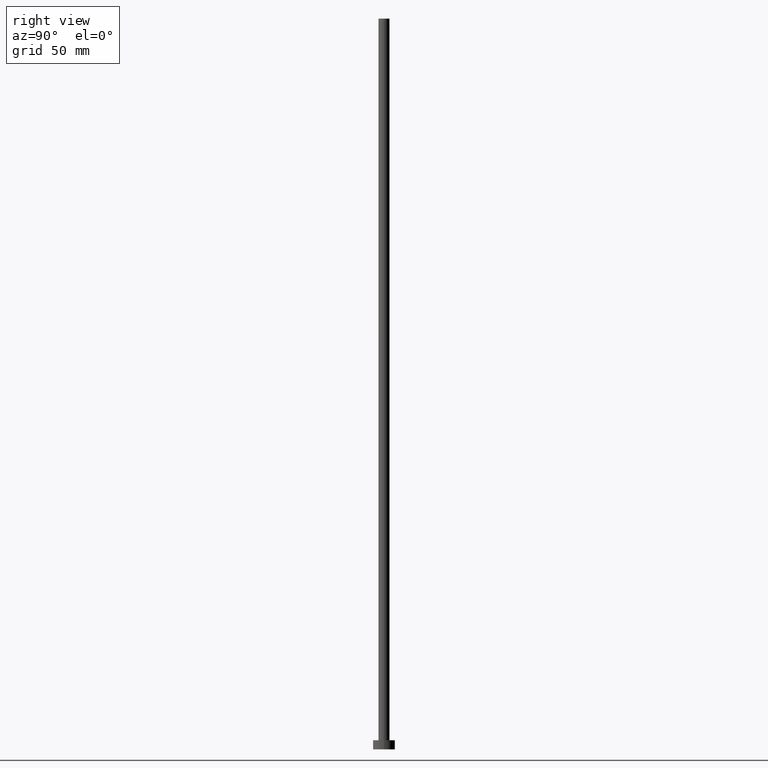
[diagram: clean part render]
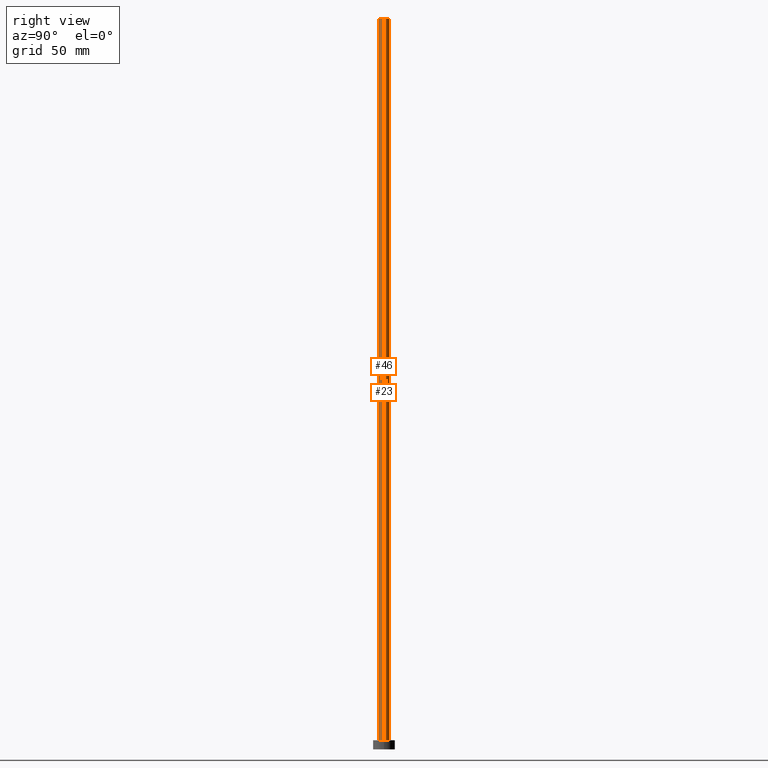
[diagram: same view with one multi-face feature highlighted, each face labeled with its STEP entity id]
A machine part, right view. The highlighted faces form ONE feature: a constant-radius fillet chain: 2 tangent blend faces with common blend radius 3 mm. The faces share edges in the B-rep.
Their STEP definitions:
[1] entity #23 (Cylinder):
#7 = DIRECTION ( 'NONE',  ( -1.000000000000000000, 0.000000000000000000, 0.000000000000000000 ) ) ;
#17 = EDGE_CURVE ( 'NONE', #237, #181, #83, .T. ) ;
#19 = DIRECTION ( 'NONE',  ( -0.000000000000000000, -0.000000000000000000, -1.000000000000000000 ) ) ;
#20 = VERTEX_POINT ( 'NONE', #64 ) ;
#22 = VECTOR ( 'NONE', #19, 1000.000000000000000 ) ;
#23 = ADVANCED_FACE ( 'NONE', ( #100 ), #178, .T. ) ;
#29 = CARTESIAN_POINT ( 'NONE',  ( -3.000000000000000444, 0.000000000000000000, 400.0000000000000000 ) ) ;
#30 = EDGE_CURVE ( 'NONE', #66, #181, #84, .T. ) ;
#33 = DIRECTION ( 'NONE',  ( 0.000000000000000000, 0.000000000000000000, 1.000000000000000000 ) ) ;
#44 = CARTESIAN_POINT ( 'NONE',  ( 0.000000000000000000, 0.000000000000000000, 400.0000000000000000 ) ) ;
#49 = CARTESIAN_POINT ( 'NONE',  ( -3.000000000000000444, 0.000000000000000000, 5.000000000000000000 ) ) ;
#57 = EDGE_CURVE ( 'NONE', #20, #66, #115, .T. ) ;
#64 = CARTESIAN_POINT ( 'NONE',  ( 3.000000000000000444, 3.673940397442059868E-16, 400.0000000000000000 ) ) ;
#66 = VERTEX_POINT ( 'NONE', #175 ) ;
#71 = DIRECTION ( 'NONE',  ( 1.000000000000000000, 0.000000000000000000, 0.000000000000000000 ) ) ;
#73 = CIRCLE ( 'NONE', #191, 3.000000000000000444 ) ;
#83 = LINE ( 'NONE', #144, #127 ) ;
#84 = CIRCLE ( 'NONE', #179, 3.000000000000000444 ) ;
#88 = DIRECTION ( 'NONE',  ( 1.000000000000000000, 0.000000000000000000, 0.000000000000000000 ) ) ;
#100 = FACE_OUTER_BOUND ( 'NONE', #106, .T. ) ;
#106 = EDGE_LOOP ( 'NONE', ( #136, #203, #119, #210 ) ) ;
#112 = CARTESIAN_POINT ( 'NONE',  ( 3.000000000000000444, 3.673940397442059868E-16, 400.0000000000000000 ) ) ;
#115 = LINE ( 'NONE', #112, #22 ) ;
#119 = ORIENTED_EDGE ( 'NONE', *, *, #30, .T. ) ;
#122 = EDGE_CURVE ( 'NONE', #20, #237, #73, .T. ) ;
#123 = DIRECTION ( 'NONE',  ( -0.000000000000000000, -0.000000000000000000, -1.000000000000000000 ) ) ;
#127 = VECTOR ( 'NONE', #240, 1000.000000000000000 ) ;
#136 = ORIENTED_EDGE ( 'NONE', *, *, #122, .F. ) ;
#144 = CARTESIAN_POINT ( 'NONE',  ( -3.000000000000000444, 0.000000000000000000, 400.0000000000000000 ) ) ;
#146 = CARTESIAN_POINT ( 'NONE',  ( 0.000000000000000000, 0.000000000000000000, 5.000000000000000000 ) ) ;
#175 = CARTESIAN_POINT ( 'NONE',  ( 3.000000000000000444, 3.673940397442059868E-16, 5.000000000000000000 ) ) ;
#176 = DIRECTION ( 'NONE',  ( 0.000000000000000000, 0.000000000000000000, 1.000000000000000000 ) ) ;
#178 = CYLINDRICAL_SURFACE ( 'NONE', #202, 3.000000000000000444 ) ;
#179 = AXIS2_PLACEMENT_3D ( 'NONE', #146, #33, #71 ) ;
#181 = VERTEX_POINT ( 'NONE', #49 ) ;
#191 = AXIS2_PLACEMENT_3D ( 'NONE', #232, #176, #88 ) ;
#202 = AXIS2_PLACEMENT_3D ( 'NONE', #44, #123, #7 ) ;
#203 = ORIENTED_EDGE ( 'NONE', *, *, #57, .T. ) ;
#210 = ORIENTED_EDGE ( 'NONE', *, *, #17, .F. ) ;
#232 = CARTESIAN_POINT ( 'NONE',  ( 0.000000000000000000, 0.000000000000000000, 400.0000000000000000 ) ) ;
#237 = VERTEX_POINT ( 'NONE', #29 ) ;
#240 = DIRECTION ( 'NONE',  ( -0.000000000000000000, -0.000000000000000000, -1.000000000000000000 ) ) ;
[2] entity #46 (Cylinder):
#17 = EDGE_CURVE ( 'NONE', #237, #181, #83, .T. ) ;
#19 = DIRECTION ( 'NONE',  ( -0.000000000000000000, -0.000000000000000000, -1.000000000000000000 ) ) ;
#20 = VERTEX_POINT ( 'NONE', #64 ) ;
#22 = VECTOR ( 'NONE', #19, 1000.000000000000000 ) ;
#24 = CARTESIAN_POINT ( 'NONE',  ( 0.000000000000000000, 0.000000000000000000, 400.0000000000000000 ) ) ;
#26 = DIRECTION ( 'NONE',  ( 0.000000000000000000, 0.000000000000000000, 1.000000000000000000 ) ) ;
#28 = ORIENTED_EDGE ( 'NONE', *, *, #17, .T. ) ;
#29 = CARTESIAN_POINT ( 'NONE',  ( -3.000000000000000444, 0.000000000000000000, 400.0000000000000000 ) ) ;
#39 = CARTESIAN_POINT ( 'NONE',  ( 0.000000000000000000, 0.000000000000000000, 400.0000000000000000 ) ) ;
#46 = ADVANCED_FACE ( 'NONE', ( #56 ), #120, .T. ) ;
#49 = CARTESIAN_POINT ( 'NONE',  ( -3.000000000000000444, 0.000000000000000000, 5.000000000000000000 ) ) ;
#50 = CIRCLE ( 'NONE', #97, 3.000000000000000444 ) ;
#53 = EDGE_CURVE ( 'NONE', #237, #20, #50, .T. ) ;
#55 = AXIS2_PLACEMENT_3D ( 'NONE', #39, #236, #239 ) ;
#56 = FACE_OUTER_BOUND ( 'NONE', #59, .T. ) ;
#57 = EDGE_CURVE ( 'NONE', #20, #66, #115, .T. ) ;
#59 = EDGE_LOOP ( 'NONE', ( #187, #164, #28, #235 ) ) ;
#64 = CARTESIAN_POINT ( 'NONE',  ( 3.000000000000000444, 3.673940397442059868E-16, 400.0000000000000000 ) ) ;
#66 = VERTEX_POINT ( 'NONE', #175 ) ;
#81 = DIRECTION ( 'NONE',  ( 1.000000000000000000, 0.000000000000000000, 0.000000000000000000 ) ) ;
#83 = LINE ( 'NONE', #144, #127 ) ;
#97 = AXIS2_PLACEMENT_3D ( 'NONE', #24, #102, #182 ) ;
#102 = DIRECTION ( 'NONE',  ( 0.000000000000000000, 0.000000000000000000, 1.000000000000000000 ) ) ;
#112 = CARTESIAN_POINT ( 'NONE',  ( 3.000000000000000444, 3.673940397442059868E-16, 400.0000000000000000 ) ) ;
#114 = AXIS2_PLACEMENT_3D ( 'NONE', #121, #26, #81 ) ;
#115 = LINE ( 'NONE', #112, #22 ) ;
#120 = CYLINDRICAL_SURFACE ( 'NONE', #55, 3.000000000000000444 ) ;
#121 = CARTESIAN_POINT ( 'NONE',  ( 0.000000000000000000, 0.000000000000000000, 5.000000000000000000 ) ) ;
#127 = VECTOR ( 'NONE', #240, 1000.000000000000000 ) ;
#144 = CARTESIAN_POINT ( 'NONE',  ( -3.000000000000000444, 0.000000000000000000, 400.0000000000000000 ) ) ;
#164 = ORIENTED_EDGE ( 'NONE', *, *, #53, .F. ) ;
#167 = CIRCLE ( 'NONE', #114, 3.000000000000000444 ) ;
#175 = CARTESIAN_POINT ( 'NONE',  ( 3.000000000000000444, 3.673940397442059868E-16, 5.000000000000000000 ) ) ;
#181 = VERTEX_POINT ( 'NONE', #49 ) ;
#182 = DIRECTION ( 'NONE',  ( 1.000000000000000000, 0.000000000000000000, 0.000000000000000000 ) ) ;
#187 = ORIENTED_EDGE ( 'NONE', *, *, #57, .F. ) ;
#190 = EDGE_CURVE ( 'NONE', #181, #66, #167, .T. ) ;
#235 = ORIENTED_EDGE ( 'NONE', *, *, #190, .T. ) ;
#236 = DIRECTION ( 'NONE',  ( -0.000000000000000000, -0.000000000000000000, -1.000000000000000000 ) ) ;
#237 = VERTEX_POINT ( 'NONE', #29 ) ;
#239 = DIRECTION ( 'NONE',  ( -1.000000000000000000, 0.000000000000000000, 0.000000000000000000 ) ) ;
#240 = DIRECTION ( 'NONE',  ( -0.000000000000000000, -0.000000000000000000, -1.000000000000000000 ) ) ;